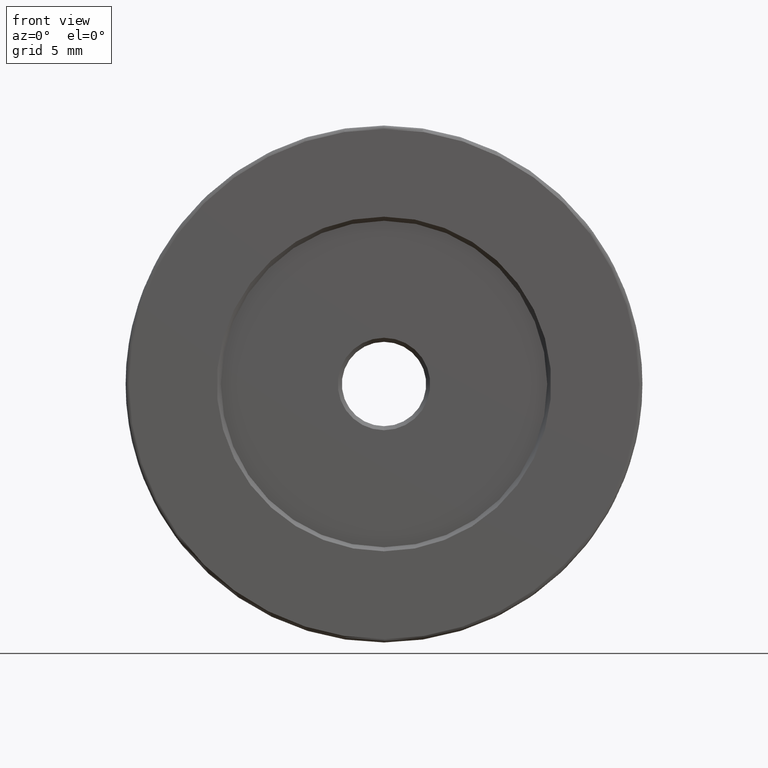
[diagram: clean part render]
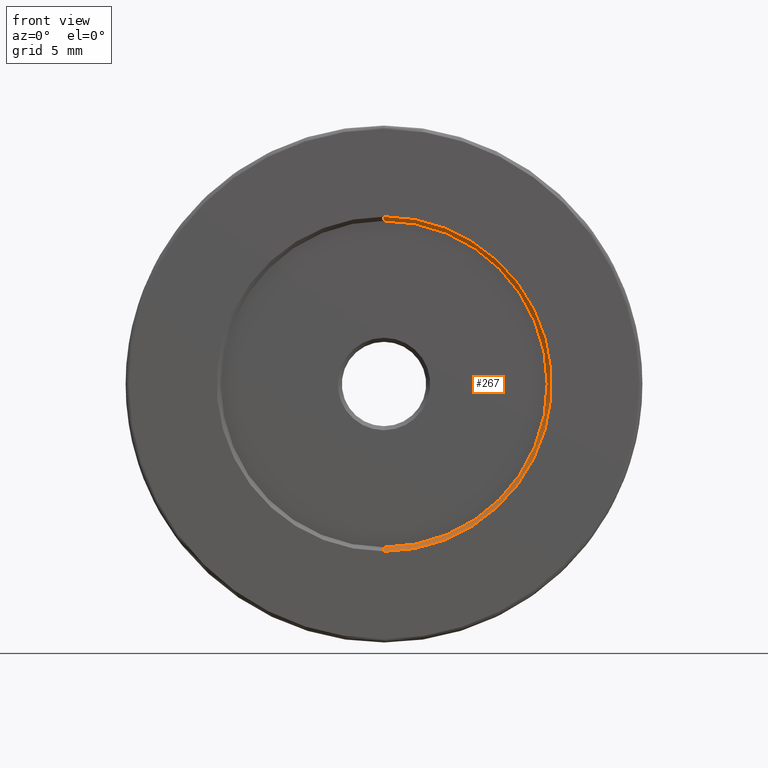
[diagram: same view with one face highlighted and labeled with its STEP entity id]
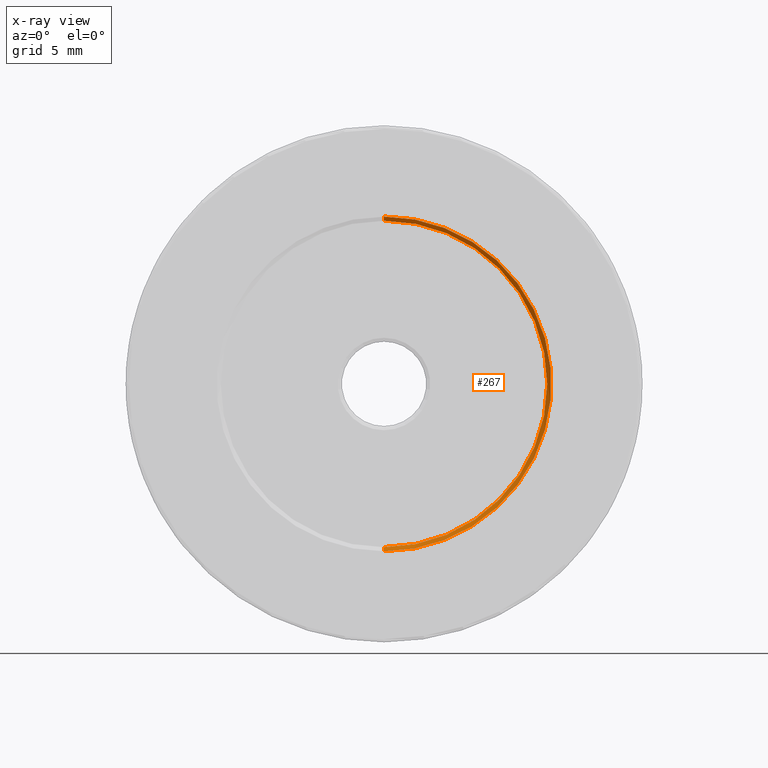
[diagram: x-ray of the same camera — body ghosted, the highlighted face saturated]
A machine part, front view. The second image highlights one B-rep face of the part: STEP entity #267.
The next image is the same camera in x-ray: the body ghosted, the highlighted face saturated — about 0% of this face is hidden behind the body in this view.
In plain terms, the highlighted conical surface has half-angle 45 deg.
Its self-contained STEP definition (entity closure, byte-faithful):
#3 = EDGE_CURVE ( 'NONE', #402, #351, #409, .T. ) ;
#31 = VECTOR ( 'NONE', #46, 1000.000000000000000 ) ;
#40 = AXIS2_PLACEMENT_3D ( 'NONE', #494, #153, #121 ) ;
#46 = DIRECTION ( 'NONE',  ( 8.659560562354857670E-17, -0.7071067811865536790, 0.7071067811865414665 ) ) ;
#60 = DIRECTION ( 'NONE',  ( 0.000000000000000000, -0.7071067811865536790, -0.7071067811865414665 ) ) ;
#113 = EDGE_CURVE ( 'NONE', #351, #560, #443, .T. ) ;
#121 = DIRECTION ( 'NONE',  ( 0.000000000000000000, 0.000000000000000000, 1.000000000000000000 ) ) ;
#122 = CARTESIAN_POINT ( 'NONE',  ( -7.546808913101048510, -3.593595127302728010, 25.99999999999999645 ) ) ;
#131 = CARTESIAN_POINT ( 'NONE',  ( -7.546808913101046734, -3.893595127302727832, 50.29999999999999716 ) ) ;
#153 = DIRECTION ( 'NONE',  ( -0.000000000000000000, 1.000000000000000000, -0.000000000000000000 ) ) ;
#170 = ORIENTED_EDGE ( 'NONE', *, *, #3, .T. ) ;
#262 = FACE_OUTER_BOUND ( 'NONE', #563, .T. ) ;
#267 = ADVANCED_FACE ( 'NONE', ( #262 ), #566, .F. ) ;
#285 = DIRECTION ( 'NONE',  ( 0.000000000000000000, 1.000000000000000000, 0.000000000000000000 ) ) ;
#325 = AXIS2_PLACEMENT_3D ( 'NONE', #601, #452, #459 ) ;
#351 = VERTEX_POINT ( 'NONE', #122 ) ;
#362 = CARTESIAN_POINT ( 'NONE',  ( -7.546808913101046734, -3.593595127302728010, 50.00000000000000000 ) ) ;
#365 = CARTESIAN_POINT ( 'NONE',  ( -7.546808913101046734, -3.893595127302727832, 50.29999999999999716 ) ) ;
#377 = VERTEX_POINT ( 'NONE', #365 ) ;
#402 = VERTEX_POINT ( 'NONE', #362 ) ;
#409 = CIRCLE ( 'NONE', #40, 12.00000000000000355 ) ;
#413 = AXIS2_PLACEMENT_3D ( 'NONE', #525, #285, #528 ) ;
#443 = LINE ( 'NONE', #485, #472 ) ;
#452 = DIRECTION ( 'NONE',  ( -0.000000000000000000, -1.000000000000000000, -0.000000000000000000 ) ) ;
#459 = DIRECTION ( 'NONE',  ( 0.000000000000000000, 0.000000000000000000, -1.000000000000000000 ) ) ;
#465 = EDGE_CURVE ( 'NONE', #402, #377, #473, .T. ) ;
#472 = VECTOR ( 'NONE', #60, 1000.000000000000000 ) ;
#473 = LINE ( 'NONE', #131, #31 ) ;
#485 = CARTESIAN_POINT ( 'NONE',  ( -7.546808913101048510, -3.893595127302727832, 25.69999999999999929 ) ) ;
#494 = CARTESIAN_POINT ( 'NONE',  ( -7.546808913101048510, -3.593595127302728010, 38.00000000000000000 ) ) ;
#501 = CIRCLE ( 'NONE', #413, 12.29999999999999893 ) ;
#525 = CARTESIAN_POINT ( 'NONE',  ( -7.546808913101048510, -3.893595127302727832, 38.00000000000000000 ) ) ;
#528 = DIRECTION ( 'NONE',  ( 0.000000000000000000, 0.000000000000000000, 1.000000000000000000 ) ) ;
#535 = CARTESIAN_POINT ( 'NONE',  ( -7.546808913101048510, -3.893595127302727832, 25.69999999999999929 ) ) ;
#545 = ORIENTED_EDGE ( 'NONE', *, *, #465, .F. ) ;
#554 = ORIENTED_EDGE ( 'NONE', *, *, #609, .F. ) ;
#560 = VERTEX_POINT ( 'NONE', #535 ) ;
#563 = EDGE_LOOP ( 'NONE', ( #545, #170, #596, #554 ) ) ;
#566 = CONICAL_SURFACE ( 'NONE', #325, 12.29999999999999893, 0.7853981633974396193 ) ;
#596 = ORIENTED_EDGE ( 'NONE', *, *, #113, .T. ) ;
#601 = CARTESIAN_POINT ( 'NONE',  ( -7.546808913101048510, -3.893595127302727832, 38.00000000000000000 ) ) ;
#609 = EDGE_CURVE ( 'NONE', #377, #560, #501, .T. ) ;